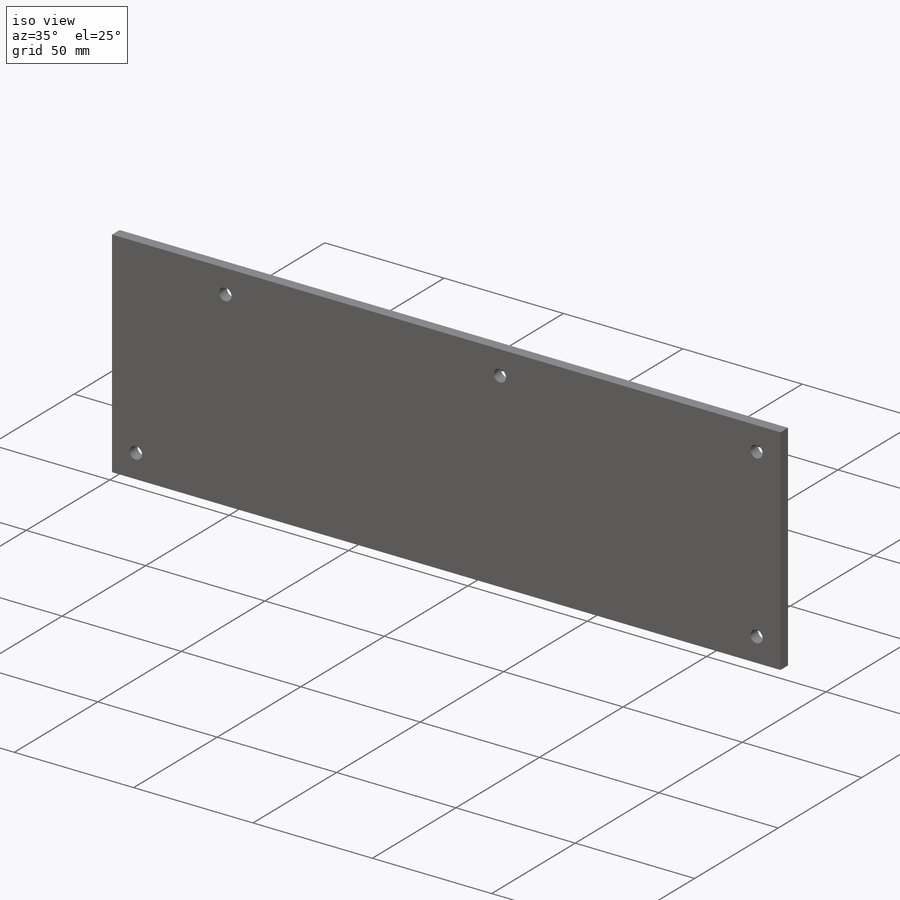
[diagram: iso view]
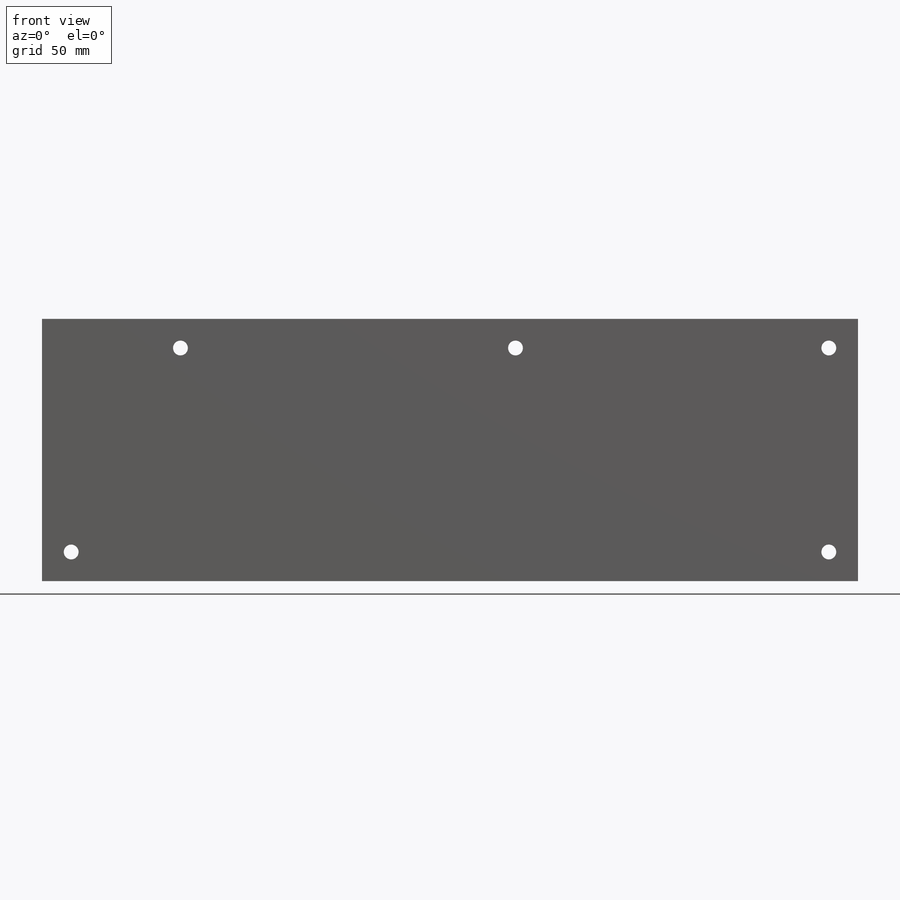
[diagram: front view]
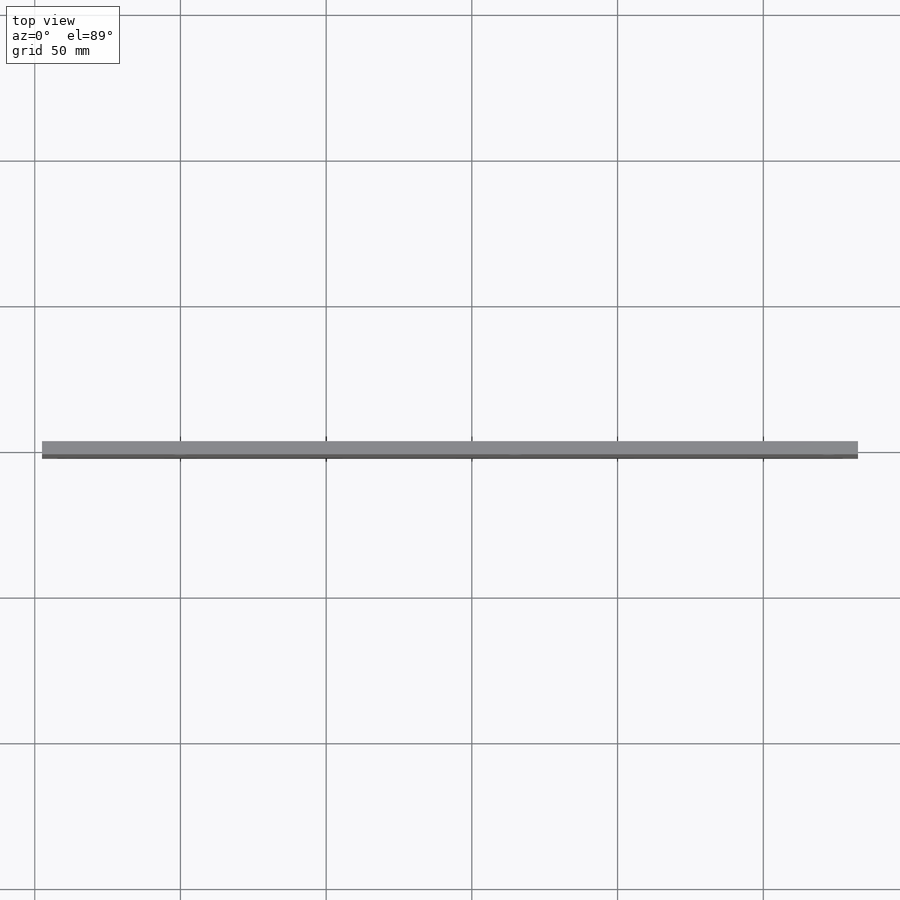
[diagram: top view]
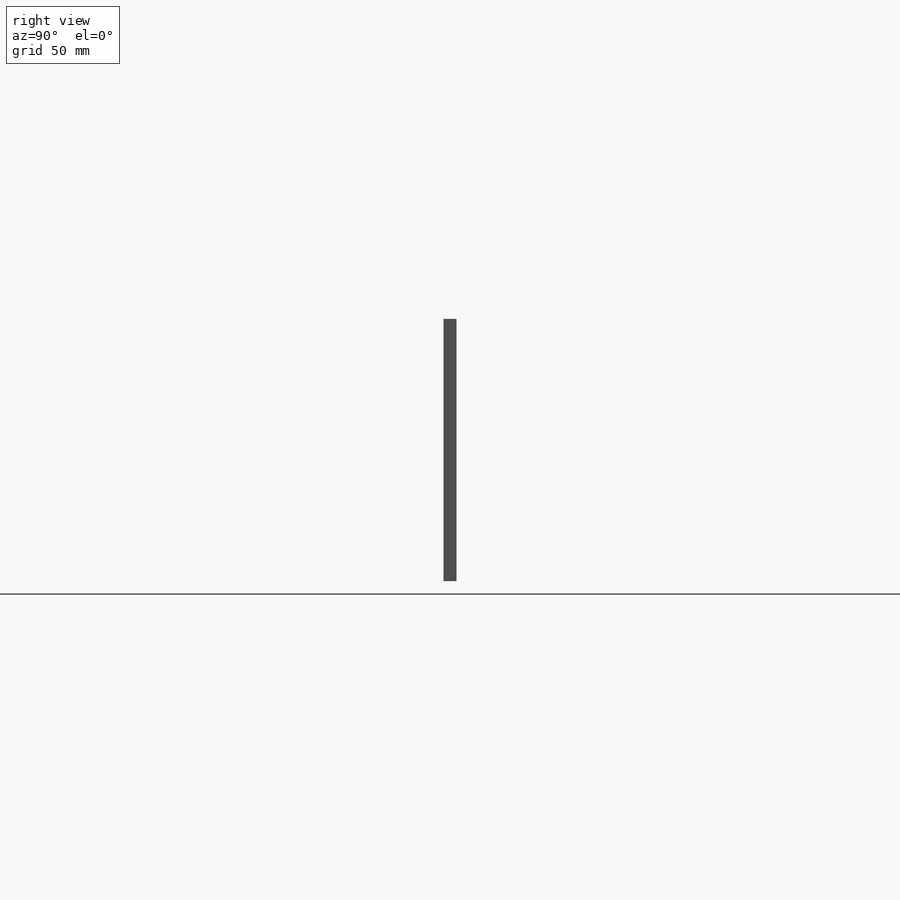
[diagram: right view]
SOLIDWORKS PART (.sldprt)
format: sldprt  version: not decoded by parser v0  size: 569,856 bytes
history: native  units: mm
features: sketch x4, cut_extrude x3, material x1, extrude x1 (+13 scaffold rows collapsed)
feature tree (22):
  scaffold x13  (default folders/planes/origin — collapsed)
  material  "Acrylic (Medium-high impact)"
  sketch  "Sketch1"  dims[c1.D4=5.1mm c1.D5=5.1mm c1.D6=5.1mm c1.D7=~9.836725mm c1.D8=~10.229893mm c1.D1=465.0mm c1.D2=90.0mm c1.D3=10.0mm c2.D5=10.0mm c2.D6=10.0mm c2.D7=10.0mm]
  extrude  "Boss-Extrude1"  Depth=4.4958mm
  sketch  "Sketch2"  dims[D1=1.0mm]
  cut_extrude  "Cut-Extrude1"  [1 undecoded]
  sketch  "Sketch3"  dims[c1.D1=5.1mm c1.D2=5.1mm c1.D3=5.1mm c2.D2=10.0mm c2.D3=10.0mm]
  cut_extrude  "Cut-Extrude2"  [1 undecoded]
  sketch  "Sketch4"  dims[D1=15.0mm D2=15.0mm]
  cut_extrude  "Cut-Extrude3"  Depth=1mm
decode coverage: 6 of 8 modeling features carry decoded parameters
note: ~ marks probable driven/reference dimensions
note: 2 parameter values undecoded
note: suppression state not decoded; provenance and decode notes live in map.json
